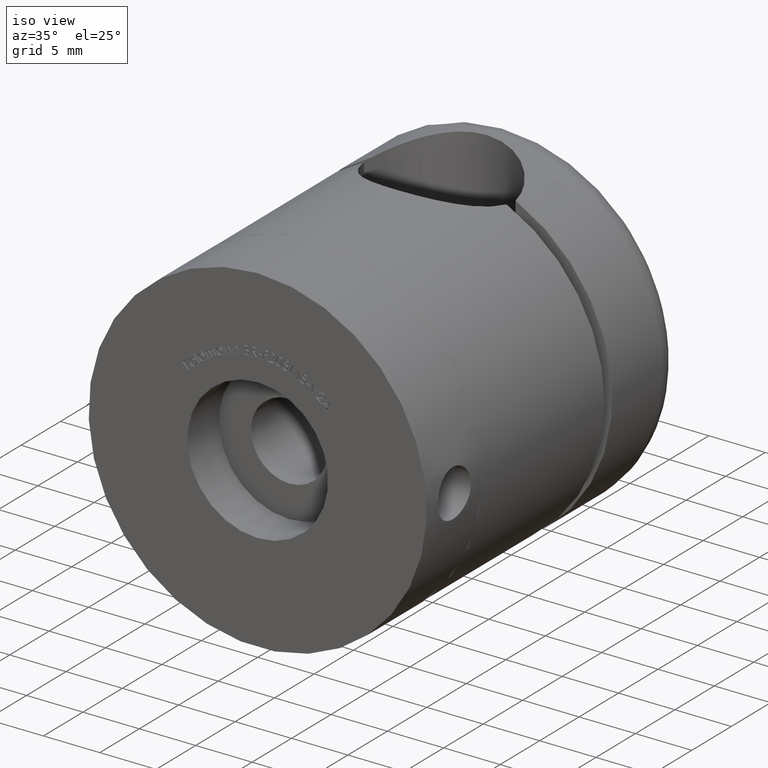
[diagram: clean part render]
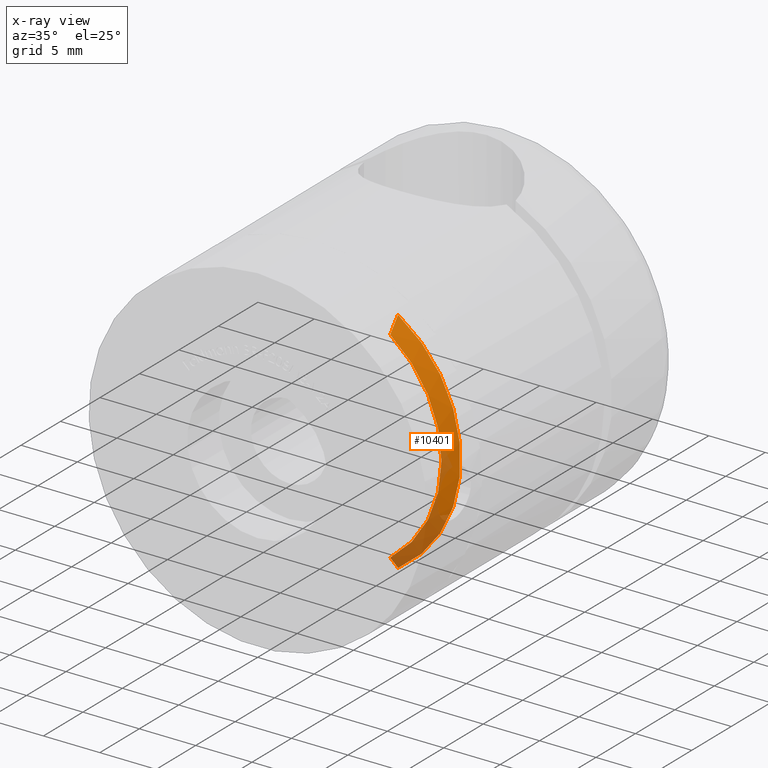
[diagram: x-ray — body ghosted, one internal face saturated and labeled with its STEP entity id]
A machine part, iso view, then the same camera in x-ray: the body is ghosted and one INTERNAL B-rep face — a face not visible from any outside direction — is saturated and labeled: STEP entity #10401.
In plain terms, the highlighted conical surface has half-angle 45 deg.
Its self-contained STEP definition (entity closure, byte-faithful):
#41 = CARTESIAN_POINT ( 'NONE',  ( 6.499999999999999100, 25.00000000000000000, -10.14655113819469200 ) ) ;
#95 = ORIENTED_EDGE ( 'NONE', *, *, #1470, .F. ) ;
#1143 = CARTESIAN_POINT ( 'NONE',  ( 0.0000000000000000000, 25.00000000000000000, 0.0000000000000000000 ) ) ;
#1317 = EDGE_CURVE ( 'NONE', #14689, #3716, #3020, .T. ) ;
#1470 = EDGE_CURVE ( 'NONE', #12534, #14689, #1567, .T. ) ;
#1567 = CIRCLE ( 'NONE', #1612, 12.05000000000000100 ) ;
#1612 = AXIS2_PLACEMENT_3D ( 'NONE', #1143, #6679, #10670 ) ;
#2347 = CARTESIAN_POINT ( 'NONE',  ( 6.499999999999999100, 26.00000000000000400, -8.936022605163893600 ) ) ;
#3020 = B_SPLINE_CURVE_WITH_KNOTS ( 'NONE', 3,
 ( #12760, #8761, #4793, #14117 ),
 .UNSPECIFIED., .F., .F.,
 ( 4, 4 ),
 ( 0.0000000000000000000, 0.001570152645216921100 ),
 .UNSPECIFIED. ) ;
#3463 = CARTESIAN_POINT ( 'NONE',  ( 0.0000000000000000000, 26.00000000000000400, 0.0000000000000000000 ) ) ;
#3716 = VERTEX_POINT ( 'NONE', #15667 ) ;
#3991 = AXIS2_PLACEMENT_3D ( 'NONE', #12589, #4448, #15112 ) ;
#4448 = DIRECTION ( 'NONE',  ( 0.0000000000000000000, -1.000000000000000000, 0.0000000000000000000 ) ) ;
#4727 = CARTESIAN_POINT ( 'NONE',  ( 6.499999999999999100, 25.00000000000000000, -10.14655113819469200 ) ) ;
#4793 = CARTESIAN_POINT ( 'NONE',  ( 6.500000000000000900, 25.67087475942841100, 9.343008360349259100 ) ) ;
#4796 = DIRECTION ( 'NONE',  ( 0.0000000000000000000, 1.000000000000000000, 0.0000000000000000000 ) ) ;
#4854 = EDGE_CURVE ( 'NONE', #11214, #12534, #8648, .T. ) ;
#5622 = CONICAL_SURFACE ( 'NONE', #3991, 11.05000000000000400, 0.7853981633974457300 ) ;
#5956 = CARTESIAN_POINT ( 'NONE',  ( 6.500000000000000900, 25.00000000000000000, 10.14655113819469200 ) ) ;
#6679 = DIRECTION ( 'NONE',  ( 0.0000000000000000000, -1.000000000000000000, 0.0000000000000000000 ) ) ;
#7031 = CIRCLE ( 'NONE', #8937, 11.05000000000000400 ) ;
#7308 = DIRECTION ( 'NONE',  ( 0.0000000000000000000, 0.0000000000000000000, 1.000000000000000000 ) ) ;
#7487 = ORIENTED_EDGE ( 'NONE', *, *, #13635, .F. ) ;
#8008 = CARTESIAN_POINT ( 'NONE',  ( 6.499999999999999100, 26.00000000000000400, -8.936022605163893600 ) ) ;
#8648 = B_SPLINE_CURVE_WITH_KNOTS ( 'NONE', 3,
 ( #8008, #17191, #10608, #41 ),
 .UNSPECIFIED., .F., .F.,
 ( 4, 4 ),
 ( 1.734723475976807100E-018, 0.001570152645216920700 ),
 .UNSPECIFIED. ) ;
#8761 = CARTESIAN_POINT ( 'NONE',  ( 6.500000000000000900, 25.33712951246843300, 9.746177595508603600 ) ) ;
#8937 = AXIS2_PLACEMENT_3D ( 'NONE', #3463, #4796, #7308 ) ;
#9427 = EDGE_LOOP ( 'NONE', ( #16508, #95, #13100, #7487 ) ) ;
#10401 = ADVANCED_FACE ( 'NONE', ( #16620 ), #5622, .T. ) ;
#10608 = CARTESIAN_POINT ( 'NONE',  ( 6.499999999999999100, 25.33712951246843700, -9.746177595508605400 ) ) ;
#10670 = DIRECTION ( 'NONE',  ( 0.0000000000000000000, 0.0000000000000000000, 1.000000000000000000 ) ) ;
#11214 = VERTEX_POINT ( 'NONE', #2347 ) ;
#12534 = VERTEX_POINT ( 'NONE', #4727 ) ;
#12589 = CARTESIAN_POINT ( 'NONE',  ( 0.0000000000000000000, 26.00000000000000400, 0.0000000000000000000 ) ) ;
#12760 = CARTESIAN_POINT ( 'NONE',  ( 6.500000000000000900, 25.00000000000000000, 10.14655113819469200 ) ) ;
#13100 = ORIENTED_EDGE ( 'NONE', *, *, #4854, .F. ) ;
#13635 = EDGE_CURVE ( 'NONE', #3716, #11214, #7031, .T. ) ;
#14117 = CARTESIAN_POINT ( 'NONE',  ( 6.500000000000000900, 26.00000000000000400, 8.936022605163895300 ) ) ;
#14689 = VERTEX_POINT ( 'NONE', #5956 ) ;
#15112 = DIRECTION ( 'NONE',  ( 0.0000000000000000000, 0.0000000000000000000, -1.000000000000000000 ) ) ;
#15667 = CARTESIAN_POINT ( 'NONE',  ( 6.500000000000000900, 26.00000000000000400, 8.936022605163895300 ) ) ;
#16508 = ORIENTED_EDGE ( 'NONE', *, *, #1317, .F. ) ;
#16620 = FACE_OUTER_BOUND ( 'NONE', #9427, .T. ) ;
#17191 = CARTESIAN_POINT ( 'NONE',  ( 6.499999999999999100, 25.67087475942840800, -9.343008360349257300 ) ) ;